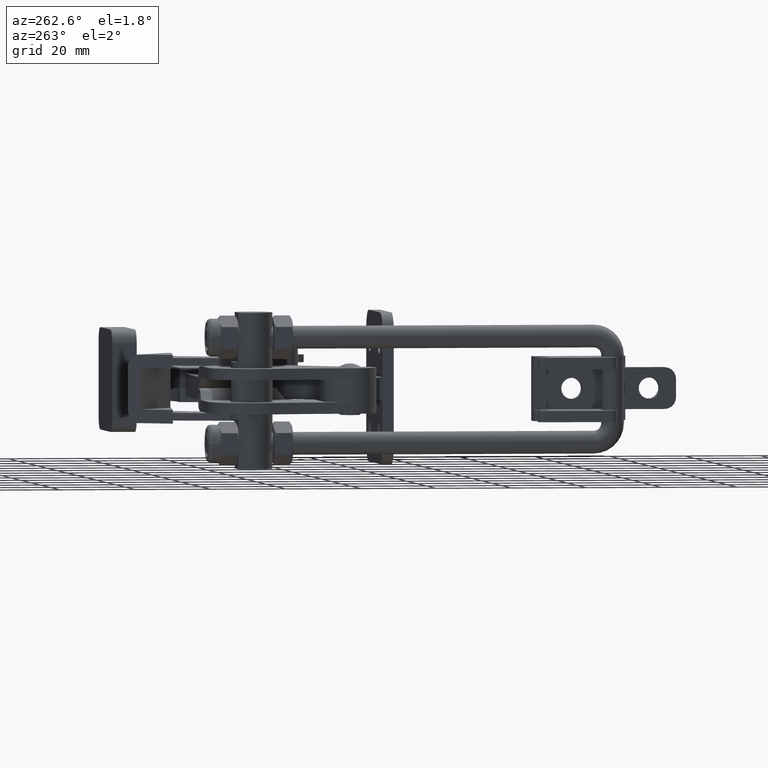
[diagram: clean part render]
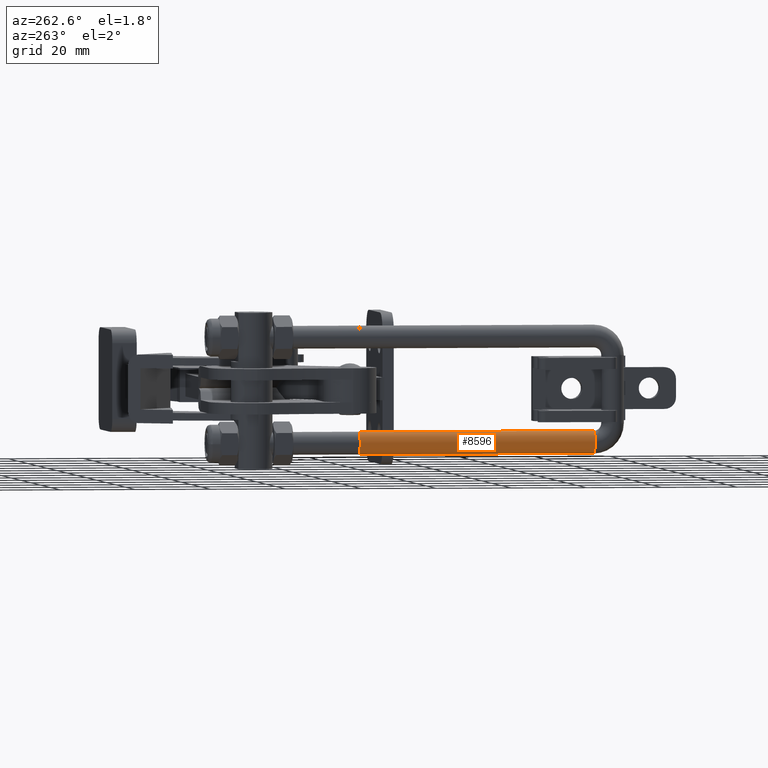
[diagram: same view with one face highlighted and labeled with its STEP entity id]
A machine part, auxiliary view. The second image highlights one B-rep face of the part: STEP entity #8596.
In plain terms, the highlighted cylindrical surface (edge-blend (fillet) strip) has radius 3 mm, axis along (-0, 1, -0).
Its self-contained STEP definition (entity closure, byte-faithful):
#98 = VECTOR ( 'NONE', #2357, 1000.000000000000000 ) ;
#198 = VERTEX_POINT ( 'NONE', #9147 ) ;
#412 = CARTESIAN_POINT ( 'NONE',  ( -42.39142380391530900, -51.99994746781670300, -13.99999999999996400 ) ) ;
#428 = ORIENTED_EDGE ( 'NONE', *, *, #2225, .T. ) ;
#477 = LINE ( 'NONE', #9484, #98 ) ;
#929 = DIRECTION ( 'NONE',  ( 0.0000000000000000000, -5.782411586589358600E-016, -1.000000000000000000 ) ) ;
#1412 = CARTESIAN_POINT ( 'NONE',  ( -42.39142380391531600, 10.50005253218329800, -16.99999999999998600 ) ) ;
#1525 = CYLINDRICAL_SURFACE ( 'NONE', #3446, 3.000000000000002700 ) ;
#2225 = EDGE_CURVE ( 'NONE', #198, #9856, #8708, .T. ) ;
#2357 = DIRECTION ( 'NONE',  ( -1.224640235140267200E-016, 1.000000000000000000, -3.808324197070573200E-016 ) ) ;
#2648 = EDGE_CURVE ( 'NONE', #9856, #5849, #477, .T. ) ;
#3356 = AXIS2_PLACEMENT_3D ( 'NONE', #14358, #7656, #929 ) ;
#3446 = AXIS2_PLACEMENT_3D ( 'NONE', #412, #8287, #9461 ) ;
#3566 = DIRECTION ( 'NONE',  ( -1.224640235140267200E-016, 1.000000000000000000, -3.808324197070573200E-016 ) ) ;
#3830 = AXIS2_PLACEMENT_3D ( 'NONE', #7313, #11514, #11071 ) ;
#4470 = CARTESIAN_POINT ( 'NONE',  ( -42.39142380391530900, -51.99994746781670300, -10.99999999999996300 ) ) ;
#4702 = LINE ( 'NONE', #5845, #13289 ) ;
#5845 = CARTESIAN_POINT ( 'NONE',  ( -42.39142380391530900, -51.99994746781670300, -16.99999999999996800 ) ) ;
#5849 = VERTEX_POINT ( 'NONE', #6766 ) ;
#5898 = ORIENTED_EDGE ( 'NONE', *, *, #12339, .T. ) ;
#6254 = ORIENTED_EDGE ( 'NONE', *, *, #11903, .F. ) ;
#6305 = EDGE_LOOP ( 'NONE', ( #428, #13779, #5898, #6254 ) ) ;
#6766 = CARTESIAN_POINT ( 'NONE',  ( -42.39142380391530900, 10.50005253218330200, -10.99999999999998800 ) ) ;
#7313 = CARTESIAN_POINT ( 'NONE',  ( -42.39142380391530900, -51.99994746781670300, -13.99999999999996400 ) ) ;
#7656 = DIRECTION ( 'NONE',  ( 1.224640235140267200E-016, -1.000000000000000000, 5.434251143468730000E-016 ) ) ;
#7857 = CIRCLE ( 'NONE', #3356, 2.999999999999999100 ) ;
#7964 = VERTEX_POINT ( 'NONE', #1412 ) ;
#8287 = DIRECTION ( 'NONE',  ( -1.224640235140267200E-016, 1.000000000000000000, -3.808324197070573200E-016 ) ) ;
#8596 = ADVANCED_FACE ( 'NONE', ( #14150 ), #1525, .T. ) ;
#8708 = CIRCLE ( 'NONE', #3830, 3.000000000000002700 ) ;
#9147 = CARTESIAN_POINT ( 'NONE',  ( -42.39142380391530900, -51.99994746781670300, -16.99999999999996800 ) ) ;
#9461 = DIRECTION ( 'NONE',  ( 0.0000000000000000000, 0.0000000000000000000, -1.000000000000000000 ) ) ;
#9484 = CARTESIAN_POINT ( 'NONE',  ( -42.39142380391530900, -51.99994746781670300, -10.99999999999996300 ) ) ;
#9856 = VERTEX_POINT ( 'NONE', #4470 ) ;
#11071 = DIRECTION ( 'NONE',  ( 0.0000000000000000000, 0.0000000000000000000, -1.000000000000000000 ) ) ;
#11514 = DIRECTION ( 'NONE',  ( -1.224640235140267200E-016, 1.000000000000000000, -3.808324197070573200E-016 ) ) ;
#11903 = EDGE_CURVE ( 'NONE', #198, #7964, #4702, .T. ) ;
#12339 = EDGE_CURVE ( 'NONE', #5849, #7964, #7857, .T. ) ;
#13289 = VECTOR ( 'NONE', #3566, 1000.000000000000000 ) ;
#13779 = ORIENTED_EDGE ( 'NONE', *, *, #2648, .T. ) ;
#14150 = FACE_OUTER_BOUND ( 'NONE', #6305, .T. ) ;
#14358 = CARTESIAN_POINT ( 'NONE',  ( -42.39142380391531600, 10.50005253218330000, -13.99999999999998800 ) ) ;